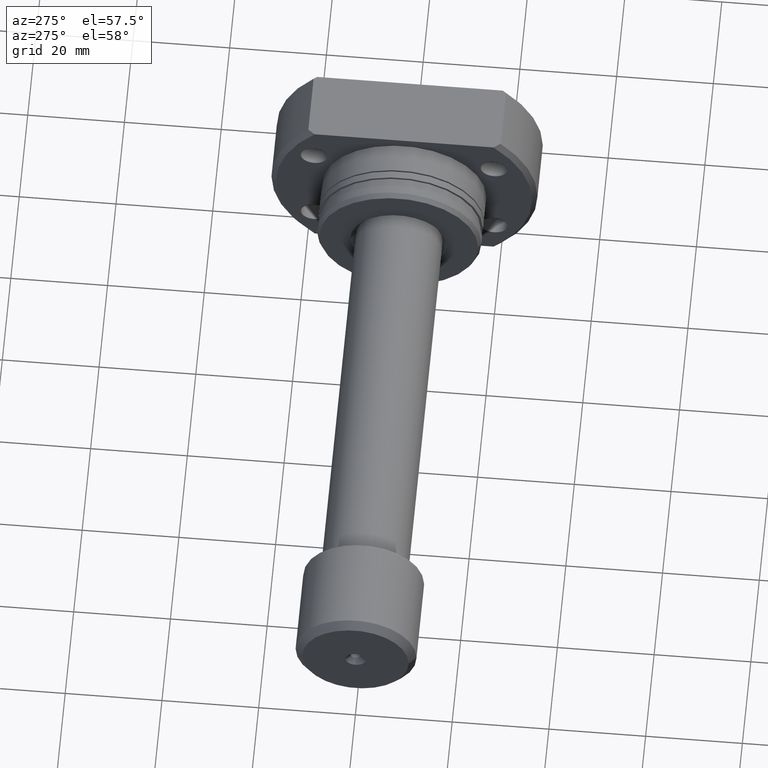
[diagram: clean part render]
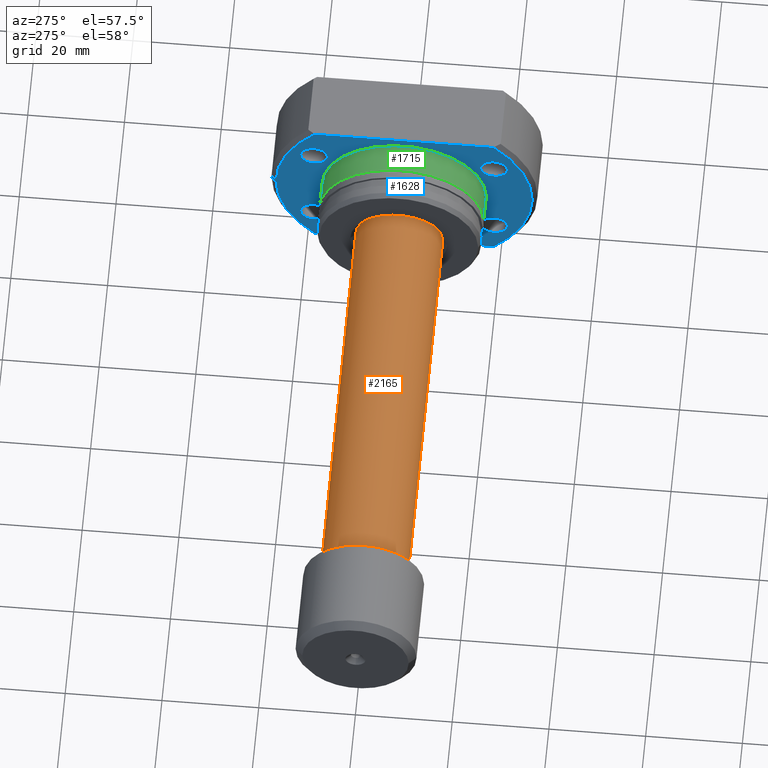
[diagram: same view with three faces highlighted in distinct colors, each labeled with its STEP entity id]
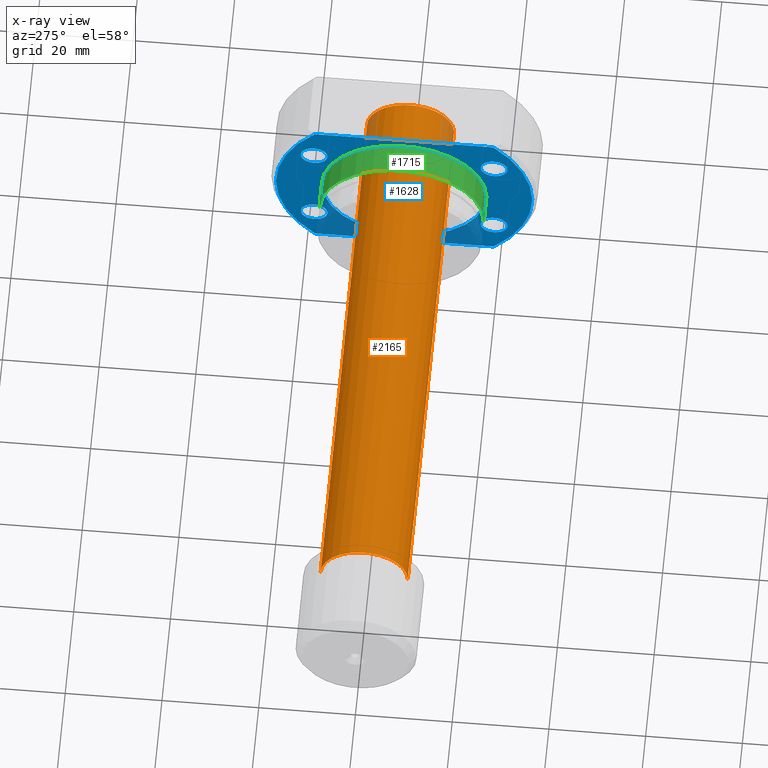
[diagram: x-ray of the same camera — body ghosted, the three highlighted faces saturated]
A machine part, auxiliary view with three faces highlighted in distinct colors.
The next image is the same camera in x-ray (body ghosted, the three faces saturated) — at least one of them is partly hidden behind the body in this view.
Their STEP definitions:

[orange] entity #2165 — the highlighted cylindrical surface (partial cylindrical patch) has radius 9 mm, axis along (-1, -0, -0).
#153 = CARTESIAN_POINT ( 'NONE',  ( 130.0667575123237611, 1.391119018537248741E-15, 0.000000000000000000 ) ) ;
#190 = CARTESIAN_POINT ( 'NONE',  ( 9.625880898621698056E-17, -9.000000000000097700, 0.000000000000000000 ) ) ;
#226 = AXIS2_PLACEMENT_3D ( 'NONE', #2519, #239, #258 ) ;
#229 = AXIS2_PLACEMENT_3D ( 'NONE', #153, #2458, #1943 ) ;
#239 = DIRECTION ( 'NONE',  ( -1.000000000000000000, -1.069542322069065801E-17, -0.000000000000000000 ) ) ;
#258 = DIRECTION ( 'NONE',  ( 1.069542322069065955E-17, -1.000000000000000000, 0.000000000000000000 ) ) ;
#421 = LINE ( 'NONE', #190, #2162 ) ;
#429 = VERTEX_POINT ( 'NONE', #1094 ) ;
#500 = DIRECTION ( 'NONE',  ( -1.000000000000000000, -1.069542322069065801E-17, -0.000000000000000000 ) ) ;
#507 = CYLINDRICAL_SURFACE ( 'NONE', #226, 9.000000000000097700 ) ;
#712 = EDGE_CURVE ( 'NONE', #1432, #1901, #2009, .T. ) ;
#820 = CIRCLE ( 'NONE', #229, 9.000000000000195399 ) ;
#948 = CARTESIAN_POINT ( 'NONE',  ( 20.39999999999999503, 2.181866337020893623E-16, 0.000000000000000000 ) ) ;
#995 = VERTEX_POINT ( 'NONE', #1384 ) ;
#1094 = CARTESIAN_POINT ( 'NONE',  ( 130.0667575123237611, -9.000000000000193623, 0.000000000000000000 ) ) ;
#1285 = DIRECTION ( 'NONE',  ( -1.000000000000000000, -1.069542322069065801E-17, -0.000000000000000000 ) ) ;
#1384 = CARTESIAN_POINT ( 'NONE',  ( 20.39999999999999503, -9.000000000000000000, 0.000000000000000000 ) ) ;
#1432 = VERTEX_POINT ( 'NONE', #2006 ) ;
#1489 = AXIS2_PLACEMENT_3D ( 'NONE', #948, #500, #2234 ) ;
#1618 = EDGE_CURVE ( 'NONE', #995, #1901, #3170, .T. ) ;
#1670 = DIRECTION ( 'NONE',  ( -1.000000000000000000, -1.069542322069065801E-17, -0.000000000000000000 ) ) ;
#1783 = ORIENTED_EDGE ( 'NONE', *, *, #1618, .F. ) ;
#1901 = VERTEX_POINT ( 'NONE', #2117 ) ;
#1943 = DIRECTION ( 'NONE',  ( 0.000000000000000000, -1.000000000000000000, 0.000000000000000000 ) ) ;
#1991 = FACE_OUTER_BOUND ( 'NONE', #2839, .T. ) ;
#2006 = CARTESIAN_POINT ( 'NONE',  ( 130.0667575123237611, 9.000000000000195399, 1.102182119232641774E-15 ) ) ;
#2009 = LINE ( 'NONE', #2197, #2394 ) ;
#2117 = CARTESIAN_POINT ( 'NONE',  ( 20.39999999999999503, 9.000000000000000000, 1.102182119232623630E-15 ) ) ;
#2162 = VECTOR ( 'NONE', #1670, 1000.000000000000000 ) ;
#2165 = ADVANCED_FACE ( 'NONE', ( #1991 ), #507, .T. ) ;
#2196 = ORIENTED_EDGE ( 'NONE', *, *, #2535, .T. ) ;
#2197 = CARTESIAN_POINT ( 'NONE',  ( -9.625880898621698056E-17, 9.000000000000097700, 1.102182119232629941E-15 ) ) ;
#2234 = DIRECTION ( 'NONE',  ( 0.000000000000000000, -1.000000000000000000, 0.000000000000000000 ) ) ;
#2394 = VECTOR ( 'NONE', #1285, 1000.000000000000000 ) ;
#2458 = DIRECTION ( 'NONE',  ( -1.000000000000000000, -1.069542322069065801E-17, -0.000000000000000000 ) ) ;
#2519 = CARTESIAN_POINT ( 'NONE',  ( 0.000000000000000000, 0.000000000000000000, 0.000000000000000000 ) ) ;
#2530 = ORIENTED_EDGE ( 'NONE', *, *, #2552, .F. ) ;
#2535 = EDGE_CURVE ( 'NONE', #429, #1432, #820, .T. ) ;
#2552 = EDGE_CURVE ( 'NONE', #429, #995, #421, .T. ) ;
#2839 = EDGE_LOOP ( 'NONE', ( #2196, #2967, #1783, #2530 ) ) ;
#2967 = ORIENTED_EDGE ( 'NONE', *, *, #712, .T. ) ;
#3170 = CIRCLE ( 'NONE', #1489, 9.000000000000000000 ) ;

[blue] entity #1628 — the highlighted planar face has unit normal (1, 0, 0).
#36 = EDGE_CURVE ( 'NONE', #3185, #2377, #2239, .T. ) ;
#45 = CARTESIAN_POINT ( 'NONE',  ( 12.50000000000000355, 18.59999999999964260, -10.75000000000000000 ) ) ;
#71 = CIRCLE ( 'NONE', #2167, 26.49999999999993250 ) ;
#80 = CARTESIAN_POINT ( 'NONE',  ( 12.50000000000000355, 15.84999999999964260, -10.75000000000000000 ) ) ;
#89 = DIRECTION ( 'NONE',  ( 1.000000000000000000, 9.242617352055502386E-18, -0.000000000000000000 ) ) ;
#130 = AXIS2_PLACEMENT_3D ( 'NONE', #1264, #2964, #763 ) ;
#165 = DIRECTION ( 'NONE',  ( 1.000000000000000000, 9.242617352055502386E-18, -0.000000000000000000 ) ) ;
#184 = DIRECTION ( 'NONE',  ( 9.242617352055502386E-18, -1.000000000000000000, 0.000000000000000000 ) ) ;
#215 = VERTEX_POINT ( 'NONE', #2540 ) ;
#227 = CARTESIAN_POINT ( 'NONE',  ( 12.50000000000000355, 18.47295320191106072, -19.00000000000001066 ) ) ;
#233 = CARTESIAN_POINT ( 'NONE',  ( 12.50000000000000178, 16.99999999999999645, 0.000000000000000000 ) ) ;
#250 = CARTESIAN_POINT ( 'NONE',  ( 12.50000000000000355, -16.99999999999999645, 0.000000000000000000 ) ) ;
#251 = EDGE_CURVE ( 'NONE', #2093, #2251, #2785, .T. ) ;
#277 = AXIS2_PLACEMENT_3D ( 'NONE', #1372, #2143, #2591 ) ;
#290 = LINE ( 'NONE', #1307, #2272 ) ;
#291 = EDGE_CURVE ( 'NONE', #2283, #2145, #2886, .T. ) ;
#324 = CARTESIAN_POINT ( 'NONE',  ( 12.50000000000000178, 1.155327169006937960E-16, 0.000000000000000000 ) ) ;
#360 = CARTESIAN_POINT ( 'NONE',  ( 12.50000000000000355, 1.155327169006938207E-16, 0.000000000000000000 ) ) ;
#385 = DIRECTION ( 'NONE',  ( 0.000000000000000000, 1.000000000000000000, 0.000000000000000000 ) ) ;
#411 = ORIENTED_EDGE ( 'NONE', *, *, #291, .F. ) ;
#425 = PLANE ( 'NONE',  #2904 ) ;
#520 = CARTESIAN_POINT ( 'NONE',  ( 12.50000000000000355, 21.34999999999963904, 10.75000000000000000 ) ) ;
#571 = ORIENTED_EDGE ( 'NONE', *, *, #3148, .T. ) ;
#578 = CARTESIAN_POINT ( 'NONE',  ( 12.50000000000000355, -21.35000000000036025, 10.75000000000000000 ) ) ;
#585 = EDGE_LOOP ( 'NONE', ( #2984, #2560 ) ) ;
#653 = DIRECTION ( 'NONE',  ( 0.000000000000000000, 1.000000000000000000, 0.000000000000000000 ) ) ;
#671 = CARTESIAN_POINT ( 'NONE',  ( 12.50000000000000355, -15.85000000000036380, -10.75000000000000000 ) ) ;
#713 = FACE_BOUND ( 'NONE', #2177, .T. ) ;
#728 = EDGE_CURVE ( 'NONE', #2251, #2093, #1019, .T. ) ;
#763 = DIRECTION ( 'NONE',  ( 0.000000000000000000, 1.000000000000000000, 0.000000000000000000 ) ) ;
#788 = CARTESIAN_POINT ( 'NONE',  ( 12.50000000000000355, -18.60000000000036380, -10.75000000000000000 ) ) ;
#790 = CARTESIAN_POINT ( 'NONE',  ( 12.50000000000000355, -18.47295320191106072, 19.00000000000001066 ) ) ;
#823 = EDGE_CURVE ( 'NONE', #1707, #1086, #3222, .T. ) ;
#824 = CIRCLE ( 'NONE', #2411, 16.99999999999999645 ) ;
#864 = EDGE_CURVE ( 'NONE', #2377, #3185, #3013, .T. ) ;
#885 = VERTEX_POINT ( 'NONE', #233 ) ;
#899 = DIRECTION ( 'NONE',  ( 1.000000000000000000, 9.242617352055502386E-18, -0.000000000000000000 ) ) ;
#981 = AXIS2_PLACEMENT_3D ( 'NONE', #3048, #2803, #1612 ) ;
#1008 = EDGE_CURVE ( 'NONE', #2145, #215, #1683, .T. ) ;
#1014 = DIRECTION ( 'NONE',  ( -9.242617352055502386E-18, 1.000000000000000000, 0.000000000000000000 ) ) ;
#1019 = CIRCLE ( 'NONE', #2202, 2.749999999999999112 ) ;
#1023 = ORIENTED_EDGE ( 'NONE', *, *, #2799, .T. ) ;
#1054 = AXIS2_PLACEMENT_3D ( 'NONE', #2171, #165, #1977 ) ;
#1086 = VERTEX_POINT ( 'NONE', #1897 ) ;
#1098 = DIRECTION ( 'NONE',  ( 0.000000000000000000, 1.000000000000000000, 0.000000000000000000 ) ) ;
#1164 = VERTEX_POINT ( 'NONE', #227 ) ;
#1171 = AXIS2_PLACEMENT_3D ( 'NONE', #45, #2053, #1331 ) ;
#1183 = CIRCLE ( 'NONE', #2968, 16.99999999999999645 ) ;
#1264 = CARTESIAN_POINT ( 'NONE',  ( 12.50000000000000355, 18.59999999999964260, 10.75000000000000000 ) ) ;
#1307 = CARTESIAN_POINT ( 'NONE',  ( 12.50000000000000355, -16.99999999999999645, -19.00000000000001066 ) ) ;
#1331 = DIRECTION ( 'NONE',  ( 0.000000000000000000, 1.000000000000000000, 0.000000000000000000 ) ) ;
#1349 = ORIENTED_EDGE ( 'NONE', *, *, #1008, .F. ) ;
#1354 = ORIENTED_EDGE ( 'NONE', *, *, #2186, .T. ) ;
#1372 = CARTESIAN_POINT ( 'NONE',  ( 12.50000000000000355, 1.155327169006938207E-16, 0.000000000000000000 ) ) ;
#1379 = EDGE_CURVE ( 'NONE', #1164, #1596, #2351, .T. ) ;
#1408 = CARTESIAN_POINT ( 'NONE',  ( 12.50000000000000355, -18.60000000000036380, 10.75000000000000000 ) ) ;
#1423 = DIRECTION ( 'NONE',  ( 1.000000000000000000, 9.242617352055502386E-18, -0.000000000000000000 ) ) ;
#1428 = EDGE_LOOP ( 'NONE', ( #571, #3036 ) ) ;
#1450 = VERTEX_POINT ( 'NONE', #1558 ) ;
#1469 = ORIENTED_EDGE ( 'NONE', *, *, #2784, .F. ) ;
#1475 = CARTESIAN_POINT ( 'NONE',  ( 12.50000000000000355, -21.35000000000036025, -10.75000000000000000 ) ) ;
#1558 = CARTESIAN_POINT ( 'NONE',  ( 12.50000000000000178, -16.99999999999999645, 2.081899558550499885E-15 ) ) ;
#1596 = VERTEX_POINT ( 'NONE', #2620 ) ;
#1612 = DIRECTION ( 'NONE',  ( 0.000000000000000000, 1.000000000000000000, 0.000000000000000000 ) ) ;
#1628 = ADVANCED_FACE ( 'NONE', ( #2478, #1946, #3142, #3210, #713, #2894 ), #425, .F. ) ;
#1674 = ORIENTED_EDGE ( 'NONE', *, *, #1379, .F. ) ;
#1683 = CIRCLE ( 'NONE', #277, 26.49999999999993250 ) ;
#1707 = VERTEX_POINT ( 'NONE', #80 ) ;
#1712 = DIRECTION ( 'NONE',  ( 0.000000000000000000, 1.000000000000000000, 0.000000000000000000 ) ) ;
#1719 = CARTESIAN_POINT ( 'NONE',  ( 12.50000000000000355, -15.85000000000036380, 10.75000000000000000 ) ) ;
#1800 = EDGE_LOOP ( 'NONE', ( #411, #1469, #1674, #1354, #1349 ) ) ;
#1879 = DIRECTION ( 'NONE',  ( 1.000000000000000000, 9.242617352055502386E-18, -0.000000000000000000 ) ) ;
#1897 = CARTESIAN_POINT ( 'NONE',  ( 12.50000000000000355, 21.34999999999963904, -10.75000000000000000 ) ) ;
#1906 = CIRCLE ( 'NONE', #981, 2.749999999999999112 ) ;
#1946 = FACE_BOUND ( 'NONE', #1428, .T. ) ;
#1947 = CARTESIAN_POINT ( 'NONE',  ( 12.50000000000000355, 18.59999999999964260, 10.75000000000000000 ) ) ;
#1952 = DIRECTION ( 'NONE',  ( 0.000000000000000000, 1.000000000000000000, 0.000000000000000000 ) ) ;
#1976 = CARTESIAN_POINT ( 'NONE',  ( 12.50000000000000178, 1.155327169006937960E-16, 0.000000000000000000 ) ) ;
#1977 = DIRECTION ( 'NONE',  ( 0.000000000000000000, 1.000000000000000000, 0.000000000000000000 ) ) ;
#1982 = DIRECTION ( 'NONE',  ( 1.000000000000000000, 9.242617352055502386E-18, -0.000000000000000000 ) ) ;
#2005 = ORIENTED_EDGE ( 'NONE', *, *, #864, .T. ) ;
#2053 = DIRECTION ( 'NONE',  ( 1.000000000000000000, 9.242617352055502386E-18, -0.000000000000000000 ) ) ;
#2069 = AXIS2_PLACEMENT_3D ( 'NONE', #2743, #89, #2367 ) ;
#2093 = VERTEX_POINT ( 'NONE', #671 ) ;
#2123 = VERTEX_POINT ( 'NONE', #1719 ) ;
#2143 = DIRECTION ( 'NONE',  ( 1.000000000000000000, 9.242617352055502386E-18, -0.000000000000000000 ) ) ;
#2145 = VERTEX_POINT ( 'NONE', #790 ) ;
#2167 = AXIS2_PLACEMENT_3D ( 'NONE', #360, #1879, #1098 ) ;
#2171 = CARTESIAN_POINT ( 'NONE',  ( 12.50000000000000355, -18.60000000000036380, -10.75000000000000000 ) ) ;
#2177 = EDGE_LOOP ( 'NONE', ( #2654, #2488 ) ) ;
#2186 = EDGE_CURVE ( 'NONE', #1164, #215, #290, .T. ) ;
#2202 = AXIS2_PLACEMENT_3D ( 'NONE', #788, #2220, #1952 ) ;
#2205 = AXIS2_PLACEMENT_3D ( 'NONE', #1947, #2896, #1712 ) ;
#2220 = DIRECTION ( 'NONE',  ( 1.000000000000000000, 9.242617352055502386E-18, -0.000000000000000000 ) ) ;
#2239 = CIRCLE ( 'NONE', #130, 2.749999999999999112 ) ;
#2241 = DIRECTION ( 'NONE',  ( 1.000000000000000000, 9.242617352055502386E-18, -0.000000000000000000 ) ) ;
#2242 = CARTESIAN_POINT ( 'NONE',  ( 12.50000000000000355, -16.99999999999999645, 19.00000000000001066 ) ) ;
#2251 = VERTEX_POINT ( 'NONE', #1475 ) ;
#2254 = DIRECTION ( 'NONE',  ( 0.000000000000000000, 1.000000000000000000, 0.000000000000000000 ) ) ;
#2271 = EDGE_CURVE ( 'NONE', #1450, #885, #1183, .T. ) ;
#2272 = VECTOR ( 'NONE', #2973, 1000.000000000000000 ) ;
#2283 = VERTEX_POINT ( 'NONE', #2726 ) ;
#2330 = DIRECTION ( 'NONE',  ( 1.000000000000000000, 9.242617352055502386E-18, -0.000000000000000000 ) ) ;
#2351 = CIRCLE ( 'NONE', #2901, 26.49999999999993250 ) ;
#2367 = DIRECTION ( 'NONE',  ( 0.000000000000000000, 1.000000000000000000, 0.000000000000000000 ) ) ;
#2373 = CARTESIAN_POINT ( 'NONE',  ( 12.50000000000000355, 15.84999999999964260, 10.75000000000000000 ) ) ;
#2377 = VERTEX_POINT ( 'NONE', #2373 ) ;
#2411 = AXIS2_PLACEMENT_3D ( 'NONE', #324, #2330, #385 ) ;
#2478 = FACE_BOUND ( 'NONE', #3158, .T. ) ;
#2488 = ORIENTED_EDGE ( 'NONE', *, *, #2271, .T. ) ;
#2540 = CARTESIAN_POINT ( 'NONE',  ( 12.50000000000000355, -18.47295320191106072, -19.00000000000001066 ) ) ;
#2560 = ORIENTED_EDGE ( 'NONE', *, *, #728, .T. ) ;
#2591 = DIRECTION ( 'NONE',  ( 0.000000000000000000, 1.000000000000000000, 0.000000000000000000 ) ) ;
#2620 = CARTESIAN_POINT ( 'NONE',  ( 12.50000000000000355, 26.49999999999993250, 0.000000000000000000 ) ) ;
#2626 = EDGE_CURVE ( 'NONE', #3101, #2123, #2814, .T. ) ;
#2651 = DIRECTION ( 'NONE',  ( 0.000000000000000000, 1.000000000000000000, 0.000000000000000000 ) ) ;
#2654 = ORIENTED_EDGE ( 'NONE', *, *, #2832, .T. ) ;
#2726 = CARTESIAN_POINT ( 'NONE',  ( 12.50000000000000355, 18.47295320191106072, 19.00000000000001066 ) ) ;
#2743 = CARTESIAN_POINT ( 'NONE',  ( 12.50000000000000355, -18.60000000000036380, 10.75000000000000000 ) ) ;
#2784 = EDGE_CURVE ( 'NONE', #1596, #2283, #71, .T. ) ;
#2785 = CIRCLE ( 'NONE', #1054, 2.749999999999999112 ) ;
#2799 = EDGE_CURVE ( 'NONE', #1086, #1707, #1906, .T. ) ;
#2803 = DIRECTION ( 'NONE',  ( 1.000000000000000000, 9.242617352055502386E-18, -0.000000000000000000 ) ) ;
#2814 = CIRCLE ( 'NONE', #2912, 2.749999999999999112 ) ;
#2832 = EDGE_CURVE ( 'NONE', #885, #1450, #824, .T. ) ;
#2886 = LINE ( 'NONE', #2242, #3194 ) ;
#2894 = FACE_OUTER_BOUND ( 'NONE', #1800, .T. ) ;
#2896 = DIRECTION ( 'NONE',  ( 1.000000000000000000, 9.242617352055502386E-18, -0.000000000000000000 ) ) ;
#2897 = ORIENTED_EDGE ( 'NONE', *, *, #823, .T. ) ;
#2901 = AXIS2_PLACEMENT_3D ( 'NONE', #3099, #899, #2651 ) ;
#2904 = AXIS2_PLACEMENT_3D ( 'NONE', #250, #1982, #1014 ) ;
#2912 = AXIS2_PLACEMENT_3D ( 'NONE', #1408, #1423, #653 ) ;
#2917 = CIRCLE ( 'NONE', #2069, 2.749999999999999112 ) ;
#2964 = DIRECTION ( 'NONE',  ( 1.000000000000000000, 9.242617352055502386E-18, -0.000000000000000000 ) ) ;
#2968 = AXIS2_PLACEMENT_3D ( 'NONE', #1976, #2241, #2254 ) ;
#2973 = DIRECTION ( 'NONE',  ( 9.242617352055502386E-18, -1.000000000000000000, 0.000000000000000000 ) ) ;
#2984 = ORIENTED_EDGE ( 'NONE', *, *, #251, .T. ) ;
#3013 = CIRCLE ( 'NONE', #2205, 2.749999999999999112 ) ;
#3036 = ORIENTED_EDGE ( 'NONE', *, *, #2626, .T. ) ;
#3048 = CARTESIAN_POINT ( 'NONE',  ( 12.50000000000000355, 18.59999999999964260, -10.75000000000000000 ) ) ;
#3056 = ORIENTED_EDGE ( 'NONE', *, *, #36, .T. ) ;
#3087 = EDGE_LOOP ( 'NONE', ( #1023, #2897 ) ) ;
#3099 = CARTESIAN_POINT ( 'NONE',  ( 12.50000000000000355, 1.155327169006938207E-16, 0.000000000000000000 ) ) ;
#3101 = VERTEX_POINT ( 'NONE', #578 ) ;
#3142 = FACE_BOUND ( 'NONE', #585, .T. ) ;
#3148 = EDGE_CURVE ( 'NONE', #2123, #3101, #2917, .T. ) ;
#3158 = EDGE_LOOP ( 'NONE', ( #3056, #2005 ) ) ;
#3185 = VERTEX_POINT ( 'NONE', #520 ) ;
#3194 = VECTOR ( 'NONE', #184, 1000.000000000000000 ) ;
#3210 = FACE_BOUND ( 'NONE', #3087, .T. ) ;
#3222 = CIRCLE ( 'NONE', #1171, 2.749999999999999112 ) ;

[green] entity #1715 — the highlighted cylindrical surface (partial cylindrical patch) has radius 17 mm, axis along (1, 0, 0).
#4 = VERTEX_POINT ( 'NONE', #740 ) ;
#16 = DIRECTION ( 'NONE',  ( 1.000000000000000000, 9.242617352055502386E-18, -0.000000000000000000 ) ) ;
#57 = FACE_OUTER_BOUND ( 'NONE', #2214, .T. ) ;
#214 = CIRCLE ( 'NONE', #694, 16.99999999999999645 ) ;
#233 = CARTESIAN_POINT ( 'NONE',  ( 12.50000000000000178, 16.99999999999999645, 0.000000000000000000 ) ) ;
#324 = CARTESIAN_POINT ( 'NONE',  ( 12.50000000000000178, 1.155327169006937960E-16, 0.000000000000000000 ) ) ;
#385 = DIRECTION ( 'NONE',  ( 0.000000000000000000, 1.000000000000000000, 0.000000000000000000 ) ) ;
#471 = EDGE_CURVE ( 'NONE', #2946, #4, #214, .T. ) ;
#523 = CARTESIAN_POINT ( 'NONE',  ( 26.50000000000000711, 16.99999999999999645, 0.000000000000000000 ) ) ;
#534 = CYLINDRICAL_SURFACE ( 'NONE', #2310, 16.99999999999999645 ) ;
#659 = ORIENTED_EDGE ( 'NONE', *, *, #2146, .T. ) ;
#668 = EDGE_CURVE ( 'NONE', #2946, #885, #2268, .T. ) ;
#694 = AXIS2_PLACEMENT_3D ( 'NONE', #3009, #16, #2774 ) ;
#740 = CARTESIAN_POINT ( 'NONE',  ( 6.499999999999783284, -16.99999999999999645, 2.081899558550499885E-15 ) ) ;
#824 = CIRCLE ( 'NONE', #2411, 16.99999999999999645 ) ;
#885 = VERTEX_POINT ( 'NONE', #233 ) ;
#949 = ORIENTED_EDGE ( 'NONE', *, *, #2832, .F. ) ;
#1009 = DIRECTION ( 'NONE',  ( 1.000000000000000000, 9.242617352055502386E-18, -0.000000000000000000 ) ) ;
#1072 = VECTOR ( 'NONE', #2937, 1000.000000000000000 ) ;
#1450 = VERTEX_POINT ( 'NONE', #1558 ) ;
#1558 = CARTESIAN_POINT ( 'NONE',  ( 12.50000000000000178, -16.99999999999999645, 2.081899558550499885E-15 ) ) ;
#1599 = VECTOR ( 'NONE', #1009, 1000.000000000000000 ) ;
#1695 = ORIENTED_EDGE ( 'NONE', *, *, #471, .T. ) ;
#1715 = ADVANCED_FACE ( 'NONE', ( #57 ), #534, .T. ) ;
#1737 = CARTESIAN_POINT ( 'NONE',  ( 6.499999999999783284, 16.99999999999999645, 0.000000000000000000 ) ) ;
#1784 = CARTESIAN_POINT ( 'NONE',  ( 26.50000000000000711, -16.99999999999999645, 2.081899558550499885E-15 ) ) ;
#2001 = DIRECTION ( 'NONE',  ( 0.000000000000000000, 1.000000000000000000, 0.000000000000000000 ) ) ;
#2146 = EDGE_CURVE ( 'NONE', #4, #1450, #3202, .T. ) ;
#2214 = EDGE_LOOP ( 'NONE', ( #1695, #659, #949, #3144 ) ) ;
#2268 = LINE ( 'NONE', #523, #1072 ) ;
#2310 = AXIS2_PLACEMENT_3D ( 'NONE', #2985, #2736, #2001 ) ;
#2330 = DIRECTION ( 'NONE',  ( 1.000000000000000000, 9.242617352055502386E-18, -0.000000000000000000 ) ) ;
#2411 = AXIS2_PLACEMENT_3D ( 'NONE', #324, #2330, #385 ) ;
#2736 = DIRECTION ( 'NONE',  ( 1.000000000000000000, 9.242617352055502386E-18, -0.000000000000000000 ) ) ;
#2774 = DIRECTION ( 'NONE',  ( 0.000000000000000000, 1.000000000000000000, 0.000000000000000000 ) ) ;
#2832 = EDGE_CURVE ( 'NONE', #885, #1450, #824, .T. ) ;
#2937 = DIRECTION ( 'NONE',  ( 1.000000000000000000, 9.242617352055502386E-18, -0.000000000000000000 ) ) ;
#2946 = VERTEX_POINT ( 'NONE', #1737 ) ;
#2985 = CARTESIAN_POINT ( 'NONE',  ( 26.50000000000000711, 2.449293598294708880E-16, 0.000000000000000000 ) ) ;
#3009 = CARTESIAN_POINT ( 'NONE',  ( 6.499999999999783284, 6.007701278835876331E-17, 0.000000000000000000 ) ) ;
#3144 = ORIENTED_EDGE ( 'NONE', *, *, #668, .F. ) ;
#3202 = LINE ( 'NONE', #1784, #1599 ) ;